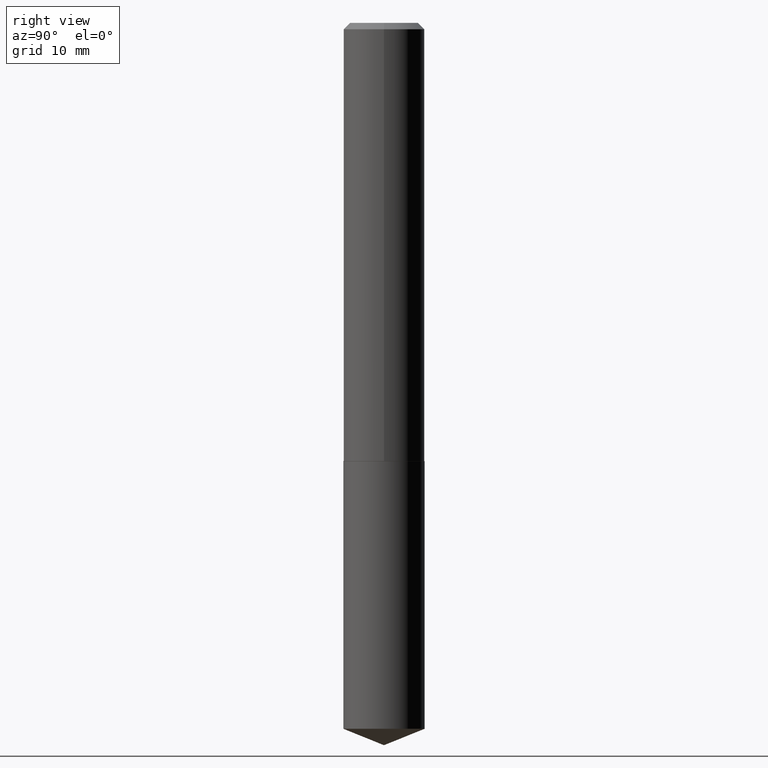
[diagram: clean part render]
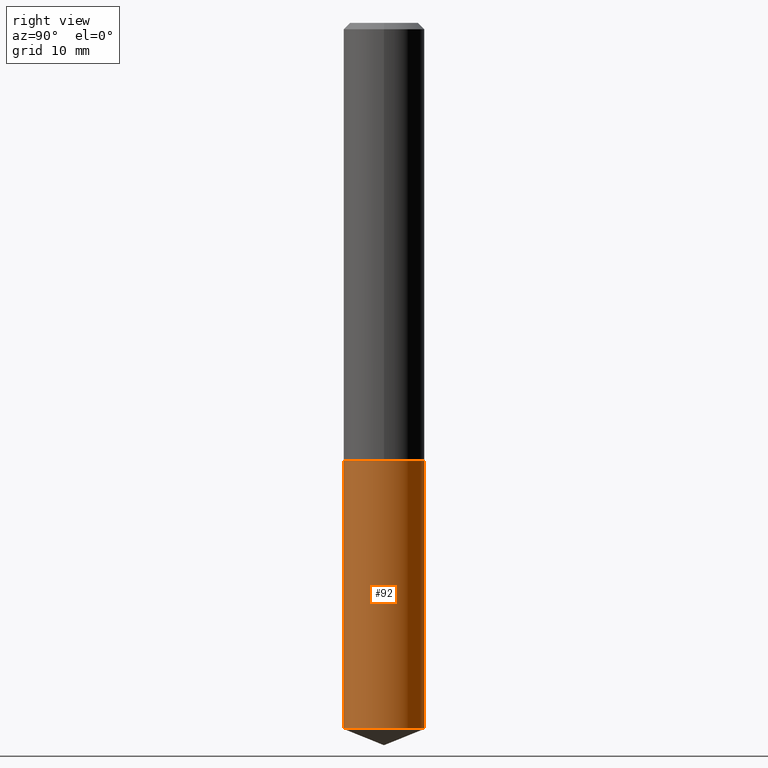
[diagram: same view with one face highlighted and labeled with its STEP entity id]
A machine part, right view. The second image highlights one B-rep face of the part: STEP entity #92.
In plain terms, the highlighted cylindrical surface (partial cylindrical patch) has radius 5 mm, axis along (-0, 0, 1).
Its self-contained STEP definition (entity closure, byte-faithful):
#8 = ORIENTED_EDGE ( 'NONE', *, *, #283, .T. ) ;
#16 = VERTEX_POINT ( 'NONE', #51 ) ;
#18 = CARTESIAN_POINT ( 'NONE',  ( 5.198822135068982087E-29, -7.422540178246643119E-15, -2.125899999999999679 ) ) ;
#20 = EDGE_CURVE ( 'NONE', #202, #40, #291, .T. ) ;
#22 = DIRECTION ( 'NONE',  ( -2.445470202318777158E-29, 3.491479339500309281E-15, 1.000000000000000000 ) ) ;
#24 = DIRECTION ( 'NONE',  ( -2.445470202318777158E-29, 3.491479339500309281E-15, 1.000000000000000000 ) ) ;
#40 = VERTEX_POINT ( 'NONE', #173 ) ;
#51 = CARTESIAN_POINT ( 'NONE',  ( -1.374596203102457595E-15, -0.1968500000000119321, -3.424367437444348905 ) ) ;
#60 = DIRECTION ( 'NONE',  ( -6.982962677686265133E-15, -1.000000000000000000, 2.775563112689116301E-15 ) ) ;
#67 = AXIS2_PLACEMENT_3D ( 'NONE', #18, #22, #206 ) ;
#76 = ORIENTED_EDGE ( 'NONE', *, *, #228, .F. ) ;
#83 = VECTOR ( 'NONE', #97, 39.37007874015748143 ) ;
#87 = EDGE_CURVE ( 'NONE', #16, #254, #274, .T. ) ;
#92 = ADVANCED_FACE ( 'NONE', ( #182 ), #378, .T. ) ;
#97 = DIRECTION ( 'NONE',  ( -2.445470202318777158E-29, 3.491479339500309675E-15, 1.000000000000000000 ) ) ;
#113 = CARTESIAN_POINT ( 'NONE',  ( -1.374596203102489543E-15, -0.1968500000000074357, -2.125899999999999235 ) ) ;
#119 = VECTOR ( 'NONE', #325, 39.37007874015748143 ) ;
#133 = EDGE_LOOP ( 'NONE', ( #312, #8, #277, #76 ) ) ;
#173 = CARTESIAN_POINT ( 'NONE',  ( 1.398703375343841210E-15, 0.1968499999999926420, -2.125900000000000567 ) ) ;
#182 = FACE_OUTER_BOUND ( 'NONE', #133, .T. ) ;
#185 = LINE ( 'NONE', #366, #119 ) ;
#202 = VERTEX_POINT ( 'NONE', #113 ) ;
#206 = DIRECTION ( 'NONE',  ( -6.982962677686265133E-15, -1.000000000000000000, 4.163344669033674845E-15 ) ) ;
#211 = DIRECTION ( 'NONE',  ( -6.982962677686265133E-15, -1.000000000000000000, 4.163344669033674845E-15 ) ) ;
#228 = EDGE_CURVE ( 'NONE', #16, #202, #267, .T. ) ;
#247 = CARTESIAN_POINT ( 'NONE',  ( 1.398703375343840618E-15, 0.1968499999999880345, -3.424367437444350237 ) ) ;
#254 = VERTEX_POINT ( 'NONE', #247 ) ;
#267 = LINE ( 'NONE', #386, #83 ) ;
#274 = CIRCLE ( 'NONE', #321, 0.1968500000000000250 ) ;
#277 = ORIENTED_EDGE ( 'NONE', *, *, #20, .F. ) ;
#283 = EDGE_CURVE ( 'NONE', #254, #40, #185, .T. ) ;
#291 = CIRCLE ( 'NONE', #67, 0.1968500000000000250 ) ;
#294 = CARTESIAN_POINT ( 'NONE',  ( 5.198822135068982087E-29, -7.422540178246643119E-15, -2.125899999999999679 ) ) ;
#312 = ORIENTED_EDGE ( 'NONE', *, *, #87, .T. ) ;
#319 = DIRECTION ( 'NONE',  ( -2.445470202318777158E-29, 3.491479339500309281E-15, 1.000000000000000000 ) ) ;
#321 = AXIS2_PLACEMENT_3D ( 'NONE', #381, #319, #60 ) ;
#325 = DIRECTION ( 'NONE',  ( -2.445470202318777158E-29, 3.491479339500309675E-15, 1.000000000000000000 ) ) ;
#366 = CARTESIAN_POINT ( 'NONE',  ( 1.398703375343809064E-15, 0.1968499999999926142, -2.125900000000000567 ) ) ;
#378 = CYLINDRICAL_SURFACE ( 'NONE', #387, 0.1968500000000000250 ) ;
#381 = CARTESIAN_POINT ( 'NONE',  ( 8.374185562020359502E-29, -1.195611240909750023E-14, -3.424367437444349793 ) ) ;
#386 = CARTESIAN_POINT ( 'NONE',  ( -1.374596203102489543E-15, -0.1968500000000074357, -2.125899999999999235 ) ) ;
#387 = AXIS2_PLACEMENT_3D ( 'NONE', #294, #24, #211 ) ;